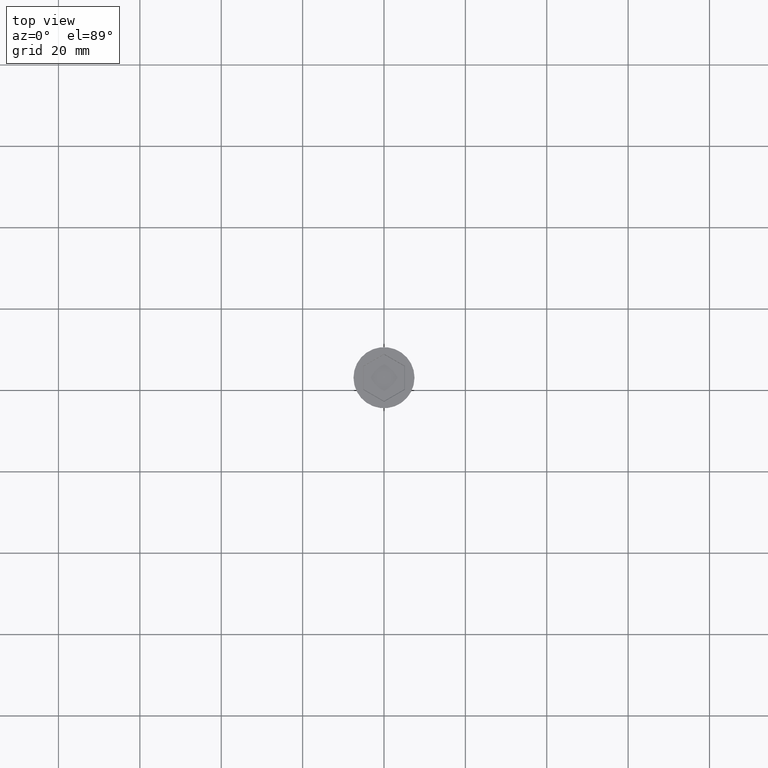
[diagram: clean part render]
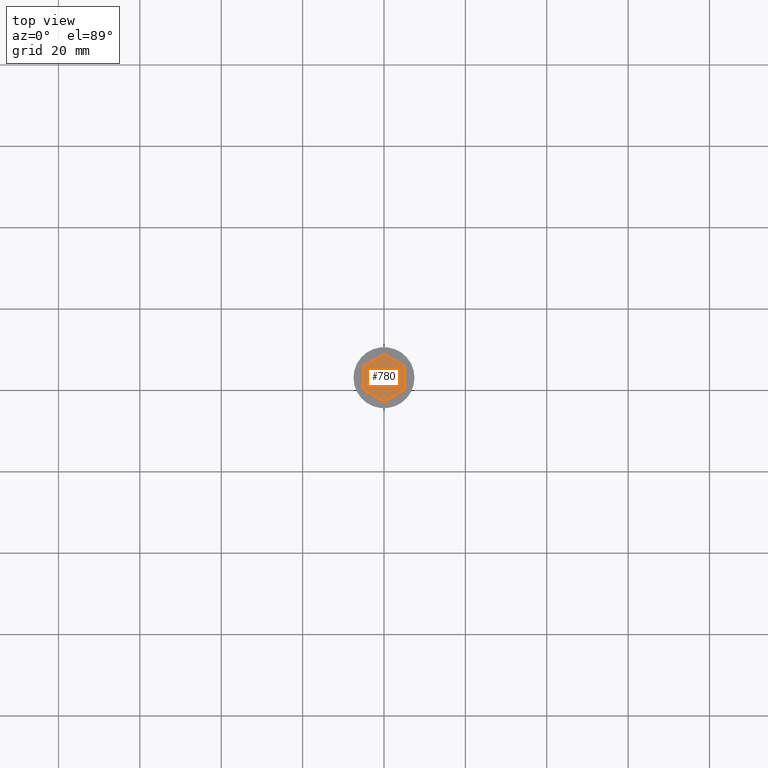
[diagram: same view with one face highlighted and labeled with its STEP entity id]
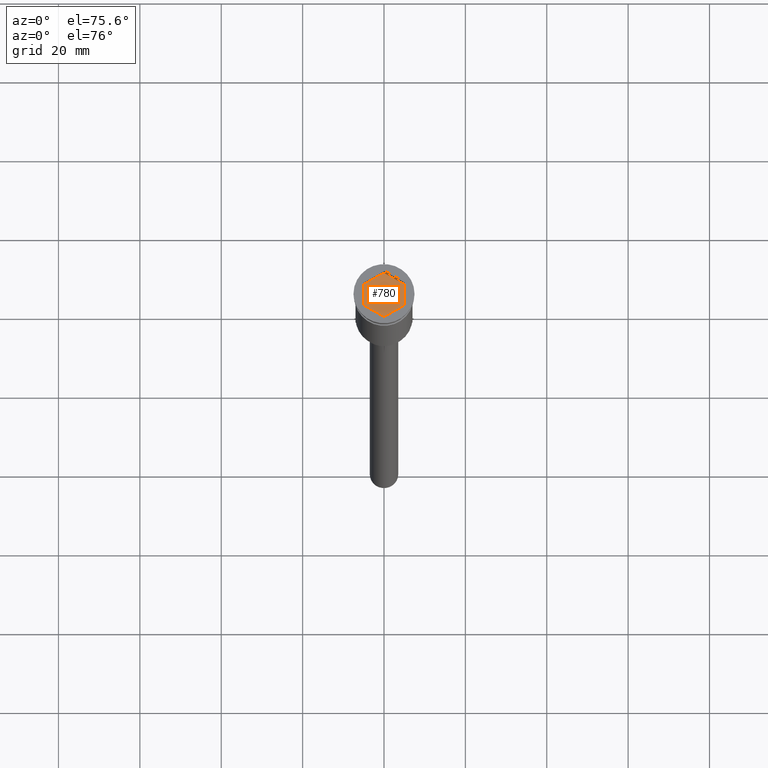
[diagram: same view with one face highlighted and labeled with its STEP entity id]
A machine part, top view. The second image highlights one B-rep face of the part: STEP entity #780.
A second angle (auxiliary view) of the same face is appended — the face is thin or edge-on in the first view.
In plain terms, the highlighted planar face has unit normal (-0, 0, 1).
Its self-contained STEP definition (entity closure, byte-faithful):
#58 = CARTESIAN_POINT ( 'NONE',  ( -4.999999999999999112, 0.000000000000000000, -2.000000000000000000 ) ) ;
#77 = CARTESIAN_POINT ( 'NONE',  ( 2.499999999999997780, 4.330127018922194537, -2.000000000000000000 ) ) ;
#106 = EDGE_CURVE ( 'NONE', #980, #336, #1096, .T. ) ;
#121 = CARTESIAN_POINT ( 'NONE',  ( 4.999999999999999112, 2.886751345948129543, -2.000000000000000000 ) ) ;
#128 = CARTESIAN_POINT ( 'NONE',  ( 4.999999999999999112, 0.000000000000000000, -2.000000000000000000 ) ) ;
#186 = EDGE_LOOP ( 'NONE', ( #756, #1518, #932, #1174, #1457, #348 ) ) ;
#203 = CARTESIAN_POINT ( 'NONE',  ( 8.673617379884035472E-16, -5.773502691896257311, -2.000000000000000000 ) ) ;
#210 = CARTESIAN_POINT ( 'NONE',  ( 2.499999999999999556, -4.330127018922193649, -2.000000000000000000 ) ) ;
#215 = DIRECTION ( 'NONE',  ( -0.000000000000000000, 0.000000000000000000, 1.000000000000000000 ) ) ;
#238 = VECTOR ( 'NONE', #628, 1000.000000000000000 ) ;
#244 = CARTESIAN_POINT ( 'NONE',  ( -2.499999999999999112, 4.330127018922192761, -2.000000000000000000 ) ) ;
#261 = LINE ( 'NONE', #1471, #559 ) ;
#336 = VERTEX_POINT ( 'NONE', #1531 ) ;
#348 = ORIENTED_EDGE ( 'NONE', *, *, #649, .T. ) ;
#399 = VECTOR ( 'NONE', #1190, 1000.000000000000114 ) ;
#414 = EDGE_CURVE ( 'NONE', #1142, #510, #1448, .T. ) ;
#452 = EDGE_CURVE ( 'NONE', #1304, #980, #1321, .T. ) ;
#510 = VERTEX_POINT ( 'NONE', #1132 ) ;
#559 = VECTOR ( 'NONE', #762, 1000.000000000000114 ) ;
#591 = DIRECTION ( 'NONE',  ( 1.000000000000000000, 0.000000000000000000, 0.000000000000000000 ) ) ;
#628 = DIRECTION ( 'NONE',  ( 0.000000000000000000, 1.000000000000000000, -0.000000000000000000 ) ) ;
#649 = EDGE_CURVE ( 'NONE', #510, #1304, #1247, .T. ) ;
#684 = EDGE_CURVE ( 'NONE', #336, #904, #1541, .T. ) ;
#756 = ORIENTED_EDGE ( 'NONE', *, *, #452, .T. ) ;
#762 = DIRECTION ( 'NONE',  ( 0.8660254037844387076, -0.4999999999999998890, 0.000000000000000000 ) ) ;
#780 = ADVANCED_FACE ( 'NONE', ( #1204 ), #1573, .T. ) ;
#818 = VECTOR ( 'NONE', #1559, 1000.000000000000227 ) ;
#904 = VERTEX_POINT ( 'NONE', #1358 ) ;
#932 = ORIENTED_EDGE ( 'NONE', *, *, #684, .T. ) ;
#980 = VERTEX_POINT ( 'NONE', #1138 ) ;
#1037 = DIRECTION ( 'NONE',  ( 0.000000000000000000, -1.000000000000000000, 0.000000000000000000 ) ) ;
#1096 = LINE ( 'NONE', #244, #1411 ) ;
#1132 = CARTESIAN_POINT ( 'NONE',  ( 4.999999999999999112, -2.886751345948129543, -2.000000000000000000 ) ) ;
#1138 = CARTESIAN_POINT ( 'NONE',  ( 0.000000000000000000, 5.773502691896255534, -2.000000000000000000 ) ) ;
#1142 = VERTEX_POINT ( 'NONE', #203 ) ;
#1174 = ORIENTED_EDGE ( 'NONE', *, *, #1277, .T. ) ;
#1190 = DIRECTION ( 'NONE',  ( -0.8660254037844388186, 0.4999999999999996114, 0.000000000000000000 ) ) ;
#1204 = FACE_OUTER_BOUND ( 'NONE', #186, .T. ) ;
#1247 = LINE ( 'NONE', #128, #238 ) ;
#1267 = AXIS2_PLACEMENT_3D ( 'NONE', #1466, #215, #591 ) ;
#1277 = EDGE_CURVE ( 'NONE', #904, #1142, #261, .T. ) ;
#1304 = VERTEX_POINT ( 'NONE', #121 ) ;
#1321 = LINE ( 'NONE', #77, #399 ) ;
#1358 = CARTESIAN_POINT ( 'NONE',  ( -4.999999999999999112, -2.886751345948129543, -2.000000000000000000 ) ) ;
#1388 = DIRECTION ( 'NONE',  ( -0.8660254037844385966, -0.4999999999999999445, 0.000000000000000000 ) ) ;
#1411 = VECTOR ( 'NONE', #1388, 1000.000000000000114 ) ;
#1448 = LINE ( 'NONE', #210, #818 ) ;
#1457 = ORIENTED_EDGE ( 'NONE', *, *, #414, .T. ) ;
#1466 = CARTESIAN_POINT ( 'NONE',  ( 0.000000000000000000, 0.000000000000000000, -2.000000000000000000 ) ) ;
#1471 = CARTESIAN_POINT ( 'NONE',  ( -2.499999999999999112, -4.330127018922193649, -2.000000000000000000 ) ) ;
#1518 = ORIENTED_EDGE ( 'NONE', *, *, #106, .T. ) ;
#1531 = CARTESIAN_POINT ( 'NONE',  ( -4.999999999999999112, 2.886751345948128655, -2.000000000000000000 ) ) ;
#1541 = LINE ( 'NONE', #58, #1586 ) ;
#1559 = DIRECTION ( 'NONE',  ( 0.8660254037844385966, 0.4999999999999998890, 0.000000000000000000 ) ) ;
#1573 = PLANE ( 'NONE',  #1267 ) ;
#1586 = VECTOR ( 'NONE', #1037, 1000.000000000000000 ) ;